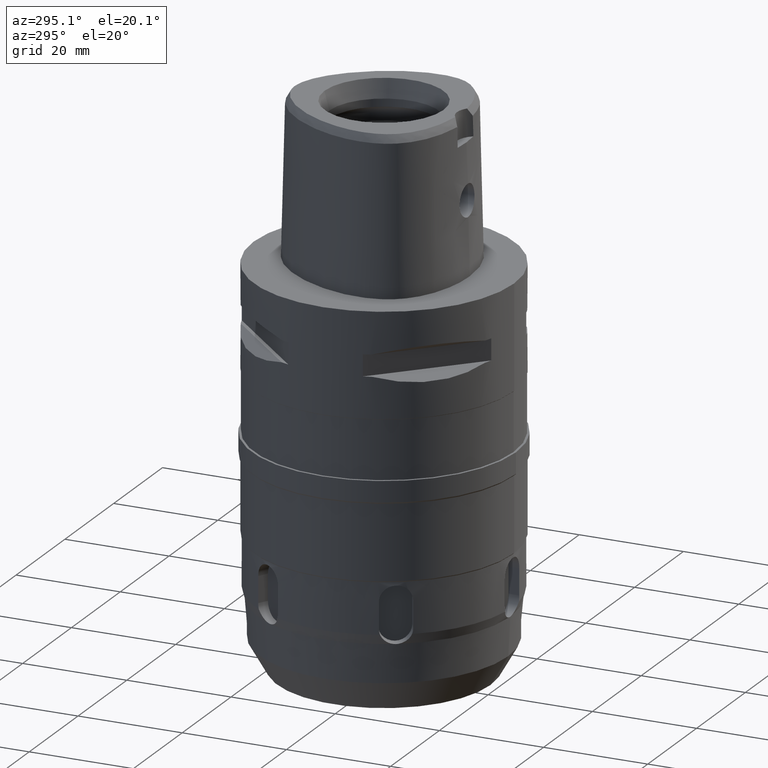
[diagram: clean part render]
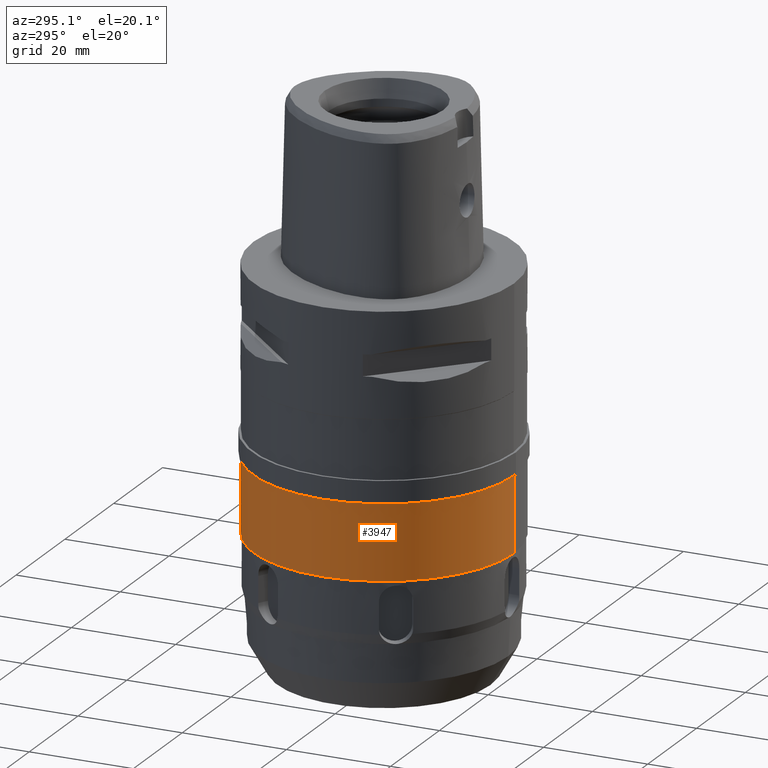
[diagram: same view with one face highlighted and labeled with its STEP entity id]
A machine part, auxiliary view. The second image highlights one B-rep face of the part: STEP entity #3947.
In plain terms, the highlighted cylindrical surface (partial cylindrical patch) has radius 25 mm, axis along (0, 0, -1).
Its self-contained STEP definition (entity closure, byte-faithful):
#687=CARTESIAN_POINT('',(0.E0,0.E0,-3.555E1));
#688=DIRECTION('',(0.E0,0.E0,-1.E0));
#689=DIRECTION('',(0.E0,-1.E0,0.E0));
#690=AXIS2_PLACEMENT_3D('',#687,#688,#689);
#695=DIRECTION('',(0.E0,0.E0,-1.E0));
#696=VECTOR('',#695,1.435E1);
#697=CARTESIAN_POINT('',(0.E0,-2.5E1,-3.555E1));
#698=LINE('',#697,#696);
#702=DIRECTION('',(0.E0,0.E0,-1.E0));
#703=VECTOR('',#702,1.435E1);
#704=CARTESIAN_POINT('',(0.E0,2.5E1,-3.555E1));
#705=LINE('',#704,#703);
#732=CARTESIAN_POINT('',(0.E0,0.E0,-4.99E1));
#733=DIRECTION('',(0.E0,0.E0,1.E0));
#734=DIRECTION('',(0.E0,1.E0,0.E0));
#735=AXIS2_PLACEMENT_3D('',#732,#733,#734);
#2837=CARTESIAN_POINT('',(0.E0,2.5E1,-3.555E1));
#2838=VERTEX_POINT('',#2837);
#2839=CARTESIAN_POINT('',(0.E0,-2.5E1,-3.555E1));
#2840=VERTEX_POINT('',#2839);
#2841=CARTESIAN_POINT('',(0.E0,2.5E1,-4.99E1));
#2842=VERTEX_POINT('',#2841);
#2843=CARTESIAN_POINT('',(0.E0,-2.5E1,-4.99E1));
#2844=VERTEX_POINT('',#2843);
#3933=CARTESIAN_POINT('',(0.E0,0.E0,3.75E0));
#3934=DIRECTION('',(0.E0,0.E0,-1.E0));
#3935=DIRECTION('',(0.E0,-1.E0,0.E0));
#3936=AXIS2_PLACEMENT_3D('',#3933,#3934,#3935);
#3937=CYLINDRICAL_SURFACE('',#3936,2.5E1);
#3939=ORIENTED_EDGE('',*,*,#3938,.F.);
#3940=ORIENTED_EDGE('',*,*,#3928,.F.);
#3942=ORIENTED_EDGE('',*,*,#3941,.T.);
#3944=ORIENTED_EDGE('',*,*,#3943,.F.);
#3945=EDGE_LOOP('',(#3939,#3940,#3942,#3944));
#3946=FACE_OUTER_BOUND('',#3945,.F.);
#691=CIRCLE('',#690,2.5E1);
#736=CIRCLE('',#735,2.5E1);
#3928=EDGE_CURVE('',#2840,#2838,#691,.T.);
#3938=EDGE_CURVE('',#2838,#2842,#705,.T.);
#3941=EDGE_CURVE('',#2840,#2844,#698,.T.);
#3943=EDGE_CURVE('',#2842,#2844,#736,.T.);
#3947=ADVANCED_FACE('',(#3946),#3937,.T.);